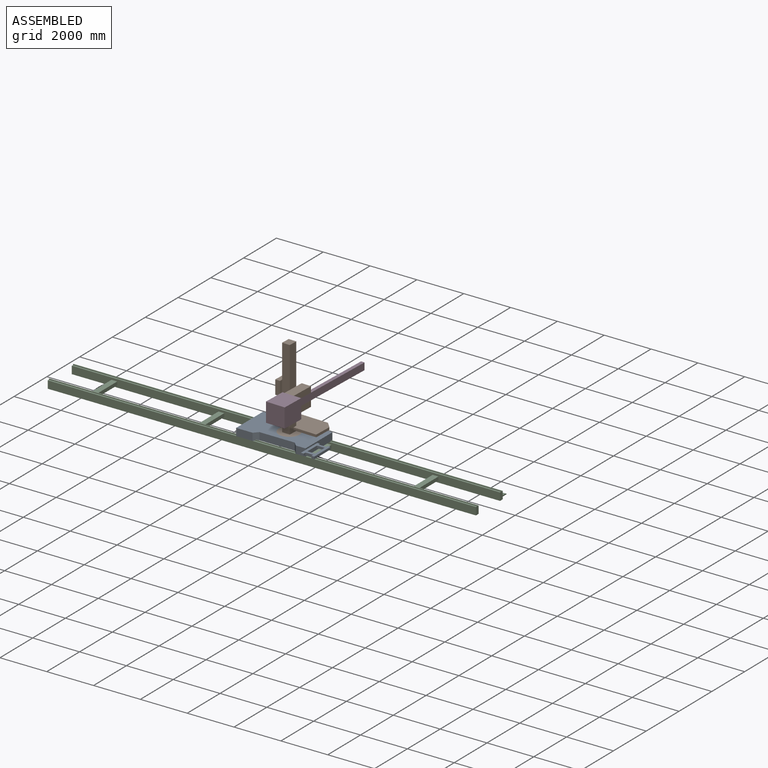
[diagram: assembled view]
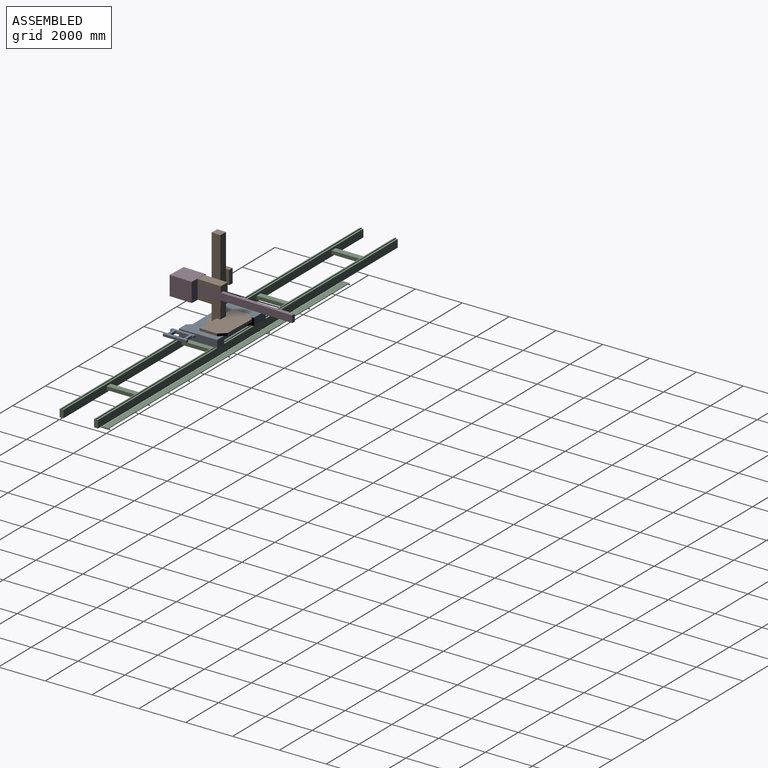
[diagram: assembled view, second angle]
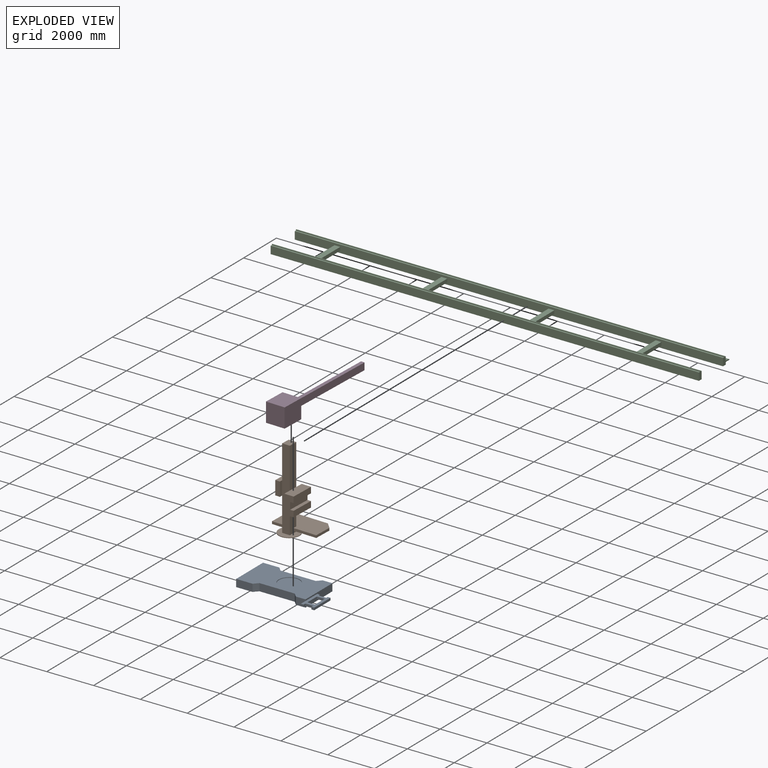
[diagram: exploded view]
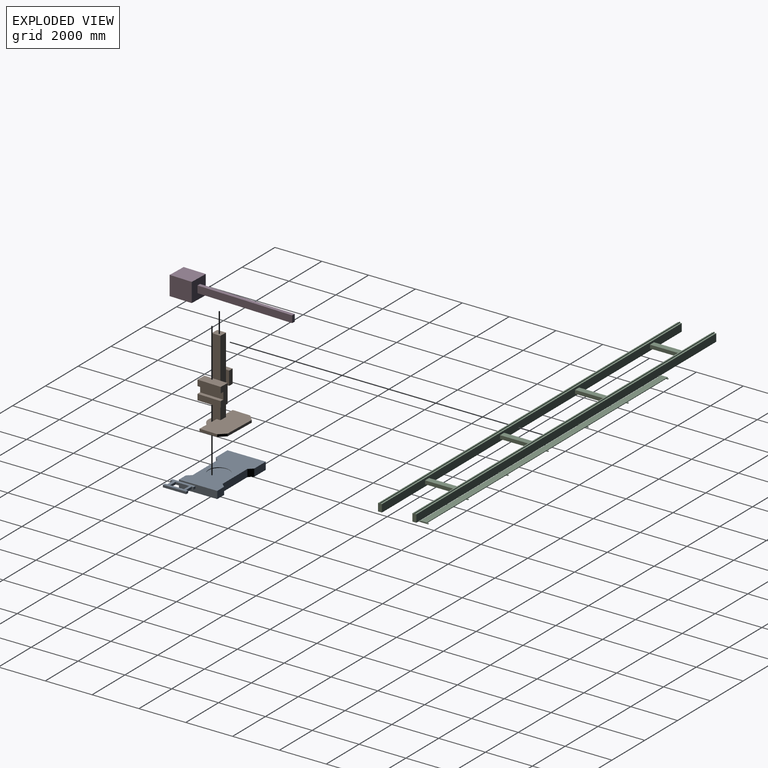
[diagram: exploded view, second angle]
ASSEMBLY  parts=4 mates=3
PART A: 50 faces, bbox 3530.6x1920.9x315.9 mm
  f0: plane 315.91x180.98mm, normal (0.74,0.67,0), area 76078.9mm2, adj f4,f20,f27,f28,f29,f47,f48,f49
  f1: plane 1638.3x315.91mm, normal (-1,0,0), area 515624mm2, adj f4,f7,f20,f21,f28,f29,f44,f45
  f2: plane 1638.3x315.91mm, normal (1,0,0), area 444270.8mm2, adj f4,f5,f6,f13,f25,f26,f28,f30
  f3: plane 315.91x180.98mm, normal (-0.74,0.67,0), area 76078.9mm2, adj f4,f5,f26,f27,f28,f38,f39,f40
  f4: plane 2962.28x1444.63mm, normal (0,0,-1), area 4012146.2mm2, adj f0,f1,f2,f3,f22,f23,f24,f27
  f5: plane 484.27x71.44mm, normal (0,0,-1), area 32267.3mm2, adj f2,f3,f26,f40
  f6: plane 484.27x71.44mm, normal (0,0,-1), area 32267.3mm2, adj f2,f24,f25,f43
  f7: plane 766.85x71.44mm, normal (0,0,-1), area 52453.7mm2, adj f1,f21,f22,f45
  f8: plane 282.58x100.33mm, normal (-1,0,0), area 28350.1mm2, adj f9,f25,f30,f31
  f9: plane 119.98x100.33mm, normal (0,-1,0), area 12037.7mm2, adj f8,f14,f30,f31
  f10: plane 119.98x100.33mm, normal (0,-1,0), area 12037.7mm2, adj f11,f16,f30,f31
  f11: plane 993.78x100.33mm, normal (1,0,0), area 99703.3mm2, adj f10,f12,f30,f31
  f12: plane 119.98x100.33mm, normal (0,1,0), area 12037.7mm2, adj f11,f17,f30,f31
  f13: plane 119.98x100.33mm, normal (0,1,0), area 12037.7mm2, adj f2,f19,f30,f31
  f14: plane 102.39x100.33mm, normal (1,0,0), area 10272.1mm2, adj f9,f15,f30,f31
  f15: plane 328.36x100.33mm, normal (0,-1,0), area 32943.5mm2, adj f14,f16,f30,f31
  f16: plane 102.39x100.33mm, normal (-1,0,0), area 10272.1mm2, adj f10,f15,f30,f31
  f17: plane 100.33x81.32mm, normal (-1,0,0), area 8158.9mm2, adj f12,f18,f30,f31
  f18: plane 328.36x100.33mm, normal (0,1,0), area 32943.5mm2, adj f17,f19,f30,f31
  f19: plane 100.33x81.32mm, normal (1,0,0), area 8158.9mm2, adj f13,f18,f30,f31
  f20: plane 701.68x315.91mm, normal (0,1,0), area 221667.9mm2, adj f0,f1,f28,f29
  f21: plane 701.68x315.91mm, normal (0,-1,0), area 221667.9mm2, adj f1,f7,f22,f28
  f22: plane 315.91x180.98mm, normal (0.74,-0.67,0), area 76078.9mm2, adj f4,f7,f21,f23,f28,f44,f45,f46
  f23: plane 1511.3x315.91mm, normal (0,-1,0), area 477438.6mm2, adj f4,f22,f24,f28
  f24: plane 315.91x180.98mm, normal (-0.74,-0.67,0), area 76078.9mm2, adj f4,f6,f23,f25,f28,f41,f42,f43
  f25: plane 419.1x315.91mm, normal (0,-1,0), area 132398.9mm2, adj f2,f6,f8,f24,f28
  f26: plane 419.1x315.91mm, normal (0,1,0), area 132398.9mm2, adj f2,f3,f5,f28
  f27: plane 1511.3x315.91mm, normal (0,1,0), area 477438.6mm2, adj f0,f3,f4,f28
  f28: plane 2962.28x1638.3mm, normal (0,0,1), area 3625605.5mm2, adj f0,f1,f2,f3,f20,f21,f22,f23
  f29: plane 766.85x71.44mm, normal (0,0,-1), area 52453.7mm2, adj f0,f1,f20,f48
  f30: plane 993.78x568.33mm, normal (0,0,-1), area 312941.5mm2, adj f2,f8,f9,f10,f11,f12,f13,f14
  f31: plane 993.78x568.33mm, normal (0,0,1), area 312941.5mm2, adj f2,f8,f9,f10,f11,f12,f13,f14
  f32: plane 583.28x100.33mm, normal (1,0,0), area 58518.8mm2, adj f30,f31,f33,f35
  f33: plane 328.36x100.33mm, normal (0,1,0), area 32943.5mm2, adj f30,f31,f32,f34
  f34: plane 583.28x100.33mm, normal (-1,0,0), area 58518.8mm2, adj f30,f31,f33,f35
  f35: plane 328.36x100.33mm, normal (0,-1,0), area 32943.5mm2, adj f30,f31,f32,f34
  f36: cylinder r=444.5mm len=889mm, axis (0,0,1), area 70939mm2, adj f28,f37
  f37: plane 889x889mm, normal (0,0,1), area 620716.7mm2, adj f36
  f38: plane 507.44x25.4mm, normal (0,0,-1), area 12594.8mm2, adj f2,f3,f39,f40
  f39: plane 507.44x38.1mm, normal (0,1,0), area 19333.6mm2, adj f2,f3,f4,f38
  f40: plane 484.27x38.1mm, normal (0,-1,0), area 18450.7mm2, adj f2,f3,f5,f38
  f41: plane 507.44x38.1mm, normal (0,-1,0), area 19333.6mm2, adj f2,f4,f24,f42
  f42: plane 507.44x25.4mm, normal (0,0,-1), area 12594.8mm2, adj f2,f24,f41,f43
  f43: plane 484.27x38.1mm, normal (0,1,0), area 18450.7mm2, adj f2,f6,f24,f42
  f44: plane 790.02x25.4mm, normal (0,0,-1), area 19772.2mm2, adj f1,f22,f45,f46
  f45: plane 766.85x38.1mm, normal (0,1,0), area 29216.8mm2, adj f1,f7,f22,f44
  f46: plane 790.02x38.1mm, normal (0,-1,0), area 30099.7mm2, adj f1,f4,f22,f44
  f47: plane 790.02x25.4mm, normal (0,0,-1), area 19772.2mm2, adj f0,f1,f48,f49
  f48: plane 766.85x38.1mm, normal (0,-1,0), area 29216.8mm2, adj f0,f1,f29,f47
  f49: plane 790.02x38.1mm, normal (0,1,0), area 30099.7mm2, adj f0,f1,f4,f47
PART B: 38 faces, bbox 1936.8x1562.1x3479.8 mm
  f0: plane 1439.03x381mm, normal (-1,0,0), area 530971.3mm2, adj f2,f4,f7,f9,f12,f13,f19,f35
  f1: plane 1731.96x381mm, normal (1,0,0), area 659877.7mm2, adj f7,f9,f10,f23
  f2: plane 330.2x92.08mm, normal (0,1,0), area 30403.2mm2, adj f0,f4,f6,f13
  f3: cylinder r=444.5mm len=889mm, axis (0,0,-1), area 70939mm2, adj f4,f5
  f4: plane 889x889mm, normal (0,0,1), area 494910.5mm2, adj f0,f2,f3,f6,f9
  f5: plane 889x889mm, normal (0,0,-1), area 620716.7mm2, adj f3
  f6: plane 922.34x381mm, normal (1,0,0), area 334112.2mm2, adj f2,f4,f7,f9,f11,f12,f13,f21
  f7: plane 3257.55x330.2mm, normal (0,1,0), area 1075643mm2, adj f0,f1,f6,f8,f10,f12,f26,f31
  f8: plane 1425.15x381mm, normal (-1,0,0), area 542982mm2, adj f7,f9,f10,f33
  f9: plane 3454.4x330.2mm, normal (0,-1,0), area 1140642.9mm2, adj f0,f1,f4,f6,f8,f10,f20,f37
  f10: plane 381x330.2mm, normal (0,0,1), area 125806.2mm2, adj f1,f7,f8,f9
  f11: plane 996.95x104.78mm, normal (0,-1,0), area 104455.4mm2, adj f6,f12,f13,f14
  f12: plane 1936.75x1028.7mm, normal (0,0,1), area 1870036.6mm2, adj f0,f6,f7,f11,f14,f15,f16,f17
  f13: plane 1936.75x1028.7mm, normal (0,0,-1), area 1870036.6mm2, adj f0,f2,f6,f11,f14,f15,f16,f17
  f14: plane 768.35x104.78mm, normal (1,0,0), area 80503.9mm2, adj f11,f12,f13,f15
  f15: plane 260.35x260.35mm, normal (0.71,0.71,0), area 38577.2mm2, adj f12,f13,f14,f16
  f16: plane 1416.05x104.78mm, normal (0,1,0), area 148366.6mm2, adj f12,f13,f15,f17
  f17: plane 260.35x260.35mm, normal (-0.71,0.71,0), area 38577.2mm2, adj f12,f13,f16,f18
  f18: plane 768.35x104.78mm, normal (-1,0,0), area 80503.9mm2, adj f12,f13,f17,f19
  f19: plane 609.6x104.78mm, normal (0,-1,0), area 63870.8mm2, adj f0,f12,f13,f18
  f20: plane 800.1x317.5mm, normal (-1,0,0), area 254031.7mm2, adj f9,f21,f23,f24
  f21: plane 1016x406.4mm, normal (0,0,-1), area 412902.4mm2, adj f6,f20,f22,f24,f26,f30
  f22: plane 800.1x406.4mm, normal (0,1,0), area 279676.9mm2, adj f21,f23,f25,f26,f27,f28,f29,f30
  f23: plane 1016x406.4mm, normal (0,0,1), area 412902.4mm2, adj f1,f20,f22,f24,f26,f28
  f24: plane 800.1x406.4mm, normal (0,-1,0), area 279676.9mm2, adj f20,f21,f23,f25,f27,f28,f29,f30
  f25: plane 1016x298.45mm, normal (1,0,0), area 303225.2mm2, adj f22,f24,f27,f29
  f26: plane 800.1x317.5mm, normal (-1,0,0), area 254031.8mm2, adj f7,f21,f22,f23
  f27: plane 1016x152.4mm, normal (0,0,-1), area 154838.4mm2, adj f22,f24,f25,f28
  f28: plane 1016x250.83mm, normal (1,0,0), area 254838.2mm2, adj f22,f23,f24,f27
  f29: plane 1016x152.4mm, normal (0,0,1), area 154838.4mm2, adj f22,f24,f25,f30
  f30: plane 1016x250.83mm, normal (1,0,0), area 254838.2mm2, adj f21,f22,f24,f29
  f31: plane 590.22x135.1mm, normal (1,0,0), area 79736.5mm2, adj f7,f33,f34,f35
  f32: plane 590.22x203.2mm, normal (0,-1,0), area 119933.2mm2, adj f33,f35,f36,f37
  f33: plane 651.19x203.2mm, normal (0,0,1), area 132322.1mm2, adj f8,f31,f32,f34,f36,f37
  f34: plane 590.22x203.2mm, normal (0,1,0), area 119933.2mm2, adj f31,f33,f35,f36
  f35: plane 651.19x203.2mm, normal (0,0,-1), area 132322.1mm2, adj f0,f31,f32,f34,f36,f37
  f36: plane 651.19x590.22mm, normal (-1,0,0), area 384347.9mm2, adj f32,f33,f34,f35
  f37: plane 590.22x135.1mm, normal (1,0,0), area 79736.5mm2, adj f9,f32,f33,f35
PART C: 82 faces, bbox 2044.7x18288x362 mm
  f0: plane 75x50.8mm, normal (0,0,1), area 3810mm2, adj f7,f43,f45,f78
  f1: plane 75x50.8mm, normal (0,0,1), area 3810mm2, adj f7,f47,f49,f78
  f2: plane 75x50.8mm, normal (0,0,1), area 3810mm2, adj f7,f51,f53,f78
  f3: plane 75x50.8mm, normal (0,0,1), area 3810mm2, adj f7,f55,f57,f78
  f4: plane 75x50.8mm, normal (0,0,1), area 3810mm2, adj f7,f59,f61,f78
  f5: plane 75x50.8mm, normal (0,0,1), area 3810mm2, adj f7,f63,f65,f78
  f6: plane 75x50.8mm, normal (0,0,1), area 3810mm2, adj f7,f67,f69,f78
  f7: plane 18288x323.85mm, normal (-1,0,0), area 5913536.6mm2, adj f0,f1,f2,f3,f4,f5,f6,f11
  f8: plane 18288x71.44mm, normal (0,0,1), area 1306449mm2, adj f10,f13,f14,f40
  f9: plane 18288x71.44mm, normal (0,0,1), area 1306449mm2, adj f16,f19,f20,f37
  f10: plane 18288x323.85mm, normal (1,0,0), area 5777270.3mm2, adj f8,f12,f13,f14,f21,f22,f23,f24
  f11: plane 18288x71.44mm, normal (0,0,1), area 1306449mm2, adj f7,f13,f14,f41
  f12: plane 18288x574.68mm, normal (0,0,-1), area 3221929mm2, adj f7,f10,f13,f14,f43,f45,f46,f47
  f13: plane 361.95x168.28mm, normal (0,-1,0), area 55463.6mm2, adj f7,f8,f10,f11,f12,f40,f41,f42
  f14: plane 361.95x168.28mm, normal (0,1,0), area 55463.6mm2, adj f7,f8,f10,f11,f12,f40,f41,f42
  f15: plane 18288x323.85mm, normal (-1,0,0), area 5777270.3mm2, adj f17,f18,f19,f20,f21,f22,f23,f24
  f16: plane 18288x323.85mm, normal (1,0,0), area 5922568.8mm2, adj f9,f18,f19,f20
  f17: plane 18288x71.44mm, normal (0,0,1), area 1306449mm2, adj f15,f19,f20,f38
  f18: plane 18288x168.28mm, normal (0,0,-1), area 3077413.2mm2, adj f15,f16,f19,f20
  f19: plane 361.95x168.28mm, normal (0,-1,0), area 55463.6mm2, adj f9,f15,f16,f17,f18,f37,f38,f39
  f20: plane 361.95x168.28mm, normal (0,1,0), area 55463.6mm2, adj f9,f15,f16,f17,f18,f37,f38,f39
  f21: plane 1301.75x148.59mm, normal (0,-1,0), area 193429.8mm2, adj f10,f15,f22,f24
  f22: plane 1301.75x244.46mm, normal (0,0,1), area 318224.1mm2, adj f10,f15,f21,f23
  f23: plane 1301.75x148.59mm, normal (0,1,0), area 193429.8mm2, adj f10,f15,f22,f24
  f24: plane 1301.75x244.46mm, normal (0,0,-1), area 318224.1mm2, adj f10,f15,f21,f23
  f25: plane 1301.75x148.59mm, normal (0,-1,0), area 193429.8mm2, adj f10,f15,f26,f28
  f26: plane 1301.75x244.46mm, normal (0,0,1), area 318224.1mm2, adj f10,f15,f25,f27
  f27: plane 1301.75x148.59mm, normal (0,1,0), area 193429.8mm2, adj f10,f15,f26,f28
  f28: plane 1301.75x244.46mm, normal (0,0,-1), area 318224.1mm2, adj f10,f15,f25,f27
  f29: plane 1301.75x148.59mm, normal (0,-1,0), area 193429.8mm2, adj f10,f15,f30,f32
  f30: plane 1301.75x244.46mm, normal (0,0,1), area 318224.1mm2, adj f10,f15,f29,f31
  f31: plane 1301.75x148.59mm, normal (0,1,0), area 193429.8mm2, adj f10,f15,f30,f32
  f32: plane 1301.75x244.46mm, normal (0,0,-1), area 318224.1mm2, adj f10,f15,f29,f31
  f33: plane 1301.75x148.59mm, normal (0,-1,0), area 193429.8mm2, adj f10,f15,f34,f36
  f34: plane 1301.75x244.46mm, normal (0,0,1), area 318224.1mm2, adj f10,f15,f33,f35
  f35: plane 1301.75x148.59mm, normal (0,1,0), area 193429.8mm2, adj f10,f15,f34,f36
  f36: plane 1301.75x244.46mm, normal (0,0,-1), area 318224.1mm2, adj f10,f15,f33,f35
  f37: plane 18288x38.1mm, normal (1,0,0), area 696772.8mm2, adj f9,f19,f20,f39
  f38: plane 18288x38.1mm, normal (-1,0,0), area 696772.8mm2, adj f17,f19,f20,f39
  f39: plane 18288x25.4mm, normal (0,0,1), area 464515.2mm2, adj f19,f20,f37,f38
  f40: plane 18288x38.1mm, normal (1,0,0), area 696772.8mm2, adj f8,f13,f14,f42
  f41: plane 18288x38.1mm, normal (-1,0,0), area 696772.8mm2, adj f11,f13,f14,f42
  f42: plane 18288x25.4mm, normal (0,0,1), area 464515.2mm2, adj f13,f14,f40,f41
  f43: plane 406.4x25.4mm, normal (0,-1,0), area 10322.6mm2, adj f0,f7,f12,f44,f46,f71
  f44: plane 50.85x50.8mm, normal (0,0,1), area 2583.1mm2, adj f43,f45,f46,f79
  f45: plane 406.4x25.4mm, normal (0,1,0), area 10322.6mm2, adj f0,f7,f12,f44,f46,f72
  f46: plane 50.8x25.4mm, normal (-1,0,0), area 1290.3mm2, adj f12,f43,f44,f45
  f47: plane 406.4x25.4mm, normal (0,-1,0), area 10322.6mm2, adj f1,f7,f12,f48,f50,f72
  f48: plane 50.85x50.8mm, normal (0,0,1), area 2583.1mm2, adj f47,f49,f50,f79
  f49: plane 406.4x25.4mm, normal (0,1,0), area 10322.6mm2, adj f1,f7,f12,f48,f50,f73
  f50: plane 50.8x25.4mm, normal (-1,0,0), area 1290.3mm2, adj f12,f47,f48,f49
  f51: plane 406.4x25.4mm, normal (0,-1,0), area 10322.6mm2, adj f2,f7,f12,f52,f54,f73
  f52: plane 50.85x50.8mm, normal (0,0,1), area 2583.1mm2, adj f51,f53,f54,f79
  f53: plane 406.4x25.4mm, normal (0,1,0), area 10322.6mm2, adj f2,f7,f12,f52,f54,f74
  f54: plane 50.8x25.4mm, normal (-1,0,0), area 1290.3mm2, adj f12,f51,f52,f53
  f55: plane 406.4x25.4mm, normal (0,-1,0), area 10322.6mm2, adj f3,f7,f12,f56,f58,f74
  f56: plane 50.85x50.8mm, normal (0,0,1), area 2583.1mm2, adj f55,f57,f58,f79
  f57: plane 406.4x25.4mm, normal (0,1,0), area 10322.6mm2, adj f3,f7,f12,f56,f58,f75
  f58: plane 50.8x25.4mm, normal (-1,0,0), area 1290.3mm2, adj f12,f55,f56,f57
  f59: plane 406.4x25.4mm, normal (0,-1,0), area 10322.6mm2, adj f4,f7,f12,f60,f62,f75
  f60: plane 50.85x50.8mm, normal (0,0,1), area 2583.1mm2, adj f59,f61,f62,f79
  f61: plane 406.4x25.4mm, normal (0,1,0), area 10322.6mm2, adj f4,f7,f12,f60,f62,f76
  f62: plane 50.8x25.4mm, normal (-1,0,0), area 1290.3mm2, adj f12,f59,f60,f61
  f63: plane 406.4x25.4mm, normal (0,-1,0), area 10322.6mm2, adj f5,f7,f12,f64,f66,f76
  f64: plane 50.85x50.8mm, normal (0,0,1), area 2583.1mm2, adj f63,f65,f66,f79
  f65: plane 406.4x25.4mm, normal (0,1,0), area 10322.6mm2, adj f5,f7,f12,f64,f66,f77
  f66: plane 50.8x25.4mm, normal (-1,0,0), area 1290.3mm2, adj f12,f63,f64,f65
  f67: plane 406.4x25.4mm, normal (0,-1,0), area 10322.6mm2, adj f6,f7,f12,f68,f70,f77
  f68: plane 50.85x50.8mm, normal (0,0,1), area 2583.1mm2, adj f67,f69,f70,f79
  f69: plane 406.4x50.8mm, normal (0,1,0), area 17448.6mm2, adj f6,f7,f12,f68,f70,f78,f79,f81
  f70: plane 50.8x25.4mm, normal (-1,0,0), area 1290.3mm2, adj f12,f67,f68,f69
  f71: plane 280.55x16.72mm, normal (0,0,-1), area 4690.2mm2, adj f43,f78,f79,f80
  f72: plane 2387.6x280.55mm, normal (0,0,-1), area 669848.1mm2, adj f45,f47,f78,f79
  f73: plane 2387.6x280.55mm, normal (0,0,-1), area 669848.1mm2, adj f49,f51,f78,f79
  f74: plane 2387.6x280.55mm, normal (0,0,-1), area 669848.1mm2, adj f53,f55,f78,f79
  f75: plane 2387.6x280.55mm, normal (0,0,-1), area 669848.1mm2, adj f57,f59,f78,f79
  f76: plane 2387.6x280.55mm, normal (0,0,-1), area 669848.1mm2, adj f61,f63,f78,f79
  f77: plane 2387.6x280.55mm, normal (0,0,-1), area 669848.1mm2, adj f65,f67,f78,f79
  f78: plane 14697.92x25.4mm, normal (1,0,0), area 373327.1mm2, adj f0,f1,f2,f3,f4,f5,f6,f69
  f79: plane 14697.92x25.4mm, normal (-1,0,0), area 373327.1mm2, adj f44,f48,f52,f56,f60,f64,f68,f69
  f80: plane 280.55x25.4mm, normal (0,-1,0), area 7126mm2, adj f71,f78,f79,f81
  f81: plane 14697.92x280.55mm, normal (0,0,1), area 4123543.4mm2, adj f69,f78,f79,f80
PART D: 11 faces, bbox 817.1x5105.4x818.4 mm
  f0: plane 4140.2x298.45mm, normal (1,0,0), area 1235642.7mm2, adj f1,f3,f4,f5
  f1: plane 4140.2x152.4mm, normal (0,0,1), area 630966.5mm2, adj f0,f2,f4,f5
  f2: plane 4140.2x298.45mm, normal (-1,0,0), area 1235642.7mm2, adj f1,f3,f4,f5
  f3: plane 4140.2x152.4mm, normal (0,0,-1), area 630966.5mm2, adj f0,f2,f4,f5
  f4: plane 298.45x152.4mm, normal (0,1,0), area 45483.8mm2, adj f0,f1,f2,f3
  f5: plane 818.35x817.1mm, normal (0,1,0), area 623189.5mm2, adj f0,f1,f2,f3,f6,f7,f8,f9
  f6: plane 965.2x818.35mm, normal (1,0,0), area 789871.3mm2, adj f5,f7,f9,f10
  f7: plane 965.2x817.1mm, normal (0,0,1), area 788664.4mm2, adj f5,f6,f8,f10
  f8: plane 965.2x818.35mm, normal (-1,0,0), area 789871.3mm2, adj f5,f7,f9,f10
  f9: plane 965.2x817.1mm, normal (0,0,-1), area 788664.4mm2, adj f5,f6,f8,f10
  f10: plane 818.35x817.1mm, normal (0,-1,0), area 668673.3mm2, adj f6,f7,f8,f9
PLACE A rot(axis=(0,0.03,-1),0deg) t=(-17873.94,-2161.02,449.1)mm
PLACE B rot(axis=(0,0,-1),1.8deg) t=(-16532.5,-2161.02,739.61)mm
PLACE C rot(axis=(0,0,-1),90deg) t=(-7986.01,-1426.01,287.18)mm fixed
PLACE D rot(axis=(0,0,-1),1.8deg) t=(-15920.91,1453.3,2087.4)mm
MATE cylindrical A.f36 <-> B.f3  axis (0,0,1) through (-16532.5,-2161.02,739.61)mm
MATE planar B.f25 <-> D.f2  axis (1,-0.03,0) through (-16129.91,-2682.21,2087.4)mm
MATE planar A.f26 <-> C.f7  axis (0,1,0) through (-15262.5,-1341.87,449.1)mm
